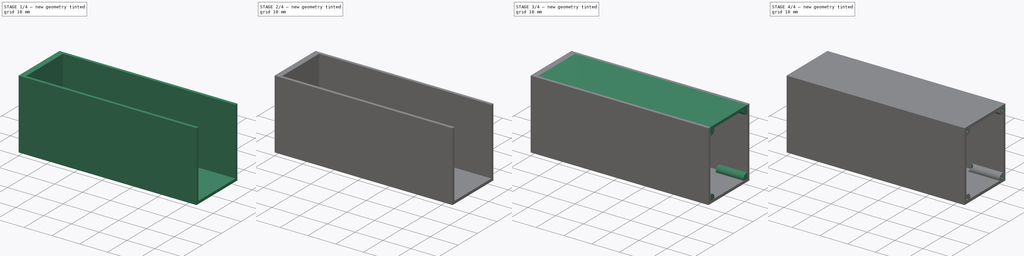
[diagram: build sequence overview — one tinted view per stage of 4, left to right]
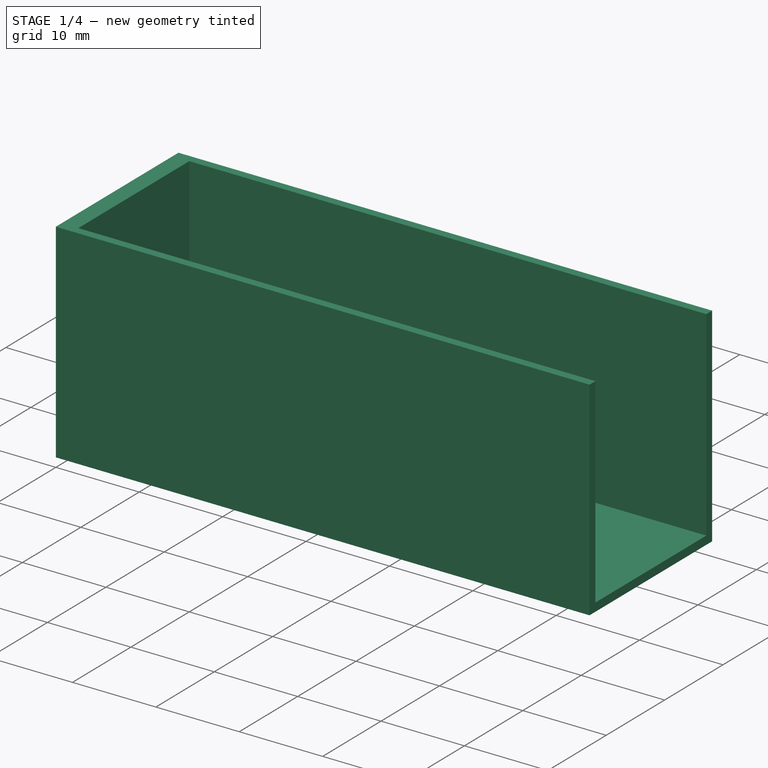
[diagram: stage 1 of 4 — iso view after this stage's code; geometry added in this stage tinted green]
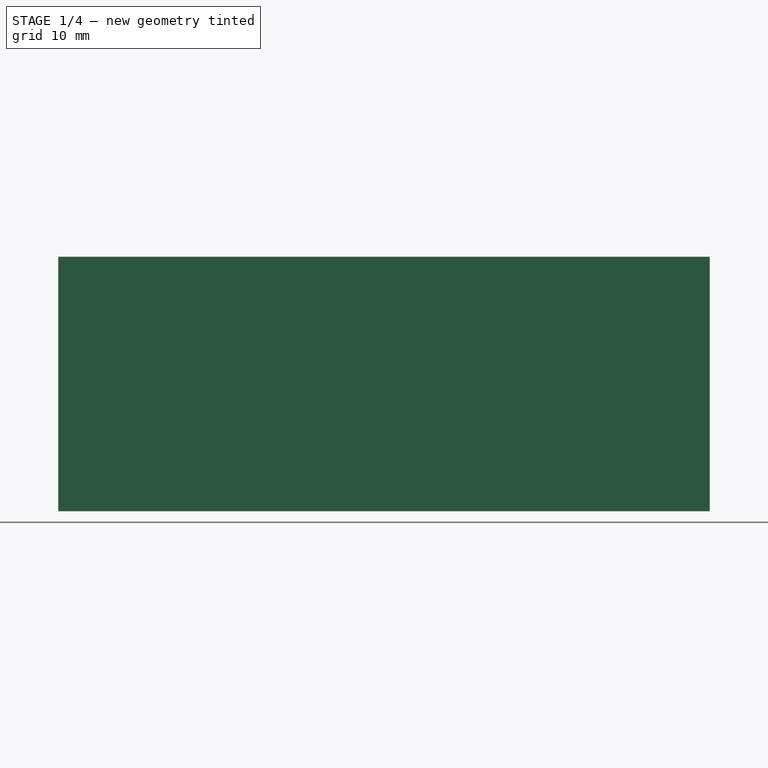
[diagram: stage 1 of 4 — front view after this stage's code; geometry added in this stage tinted green]
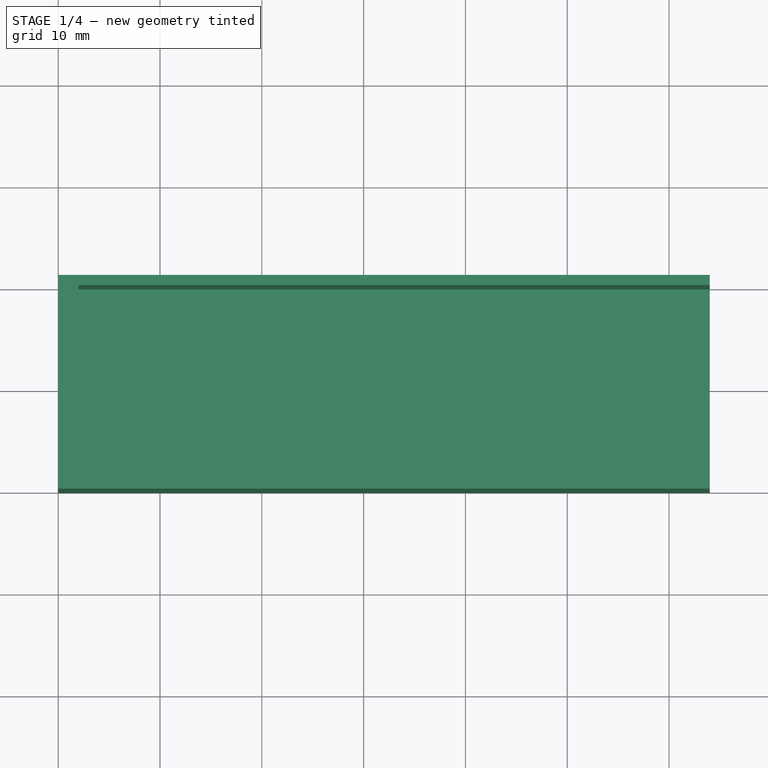
[diagram: stage 1 of 4 — top view after this stage's code; geometry added in this stage tinted green]
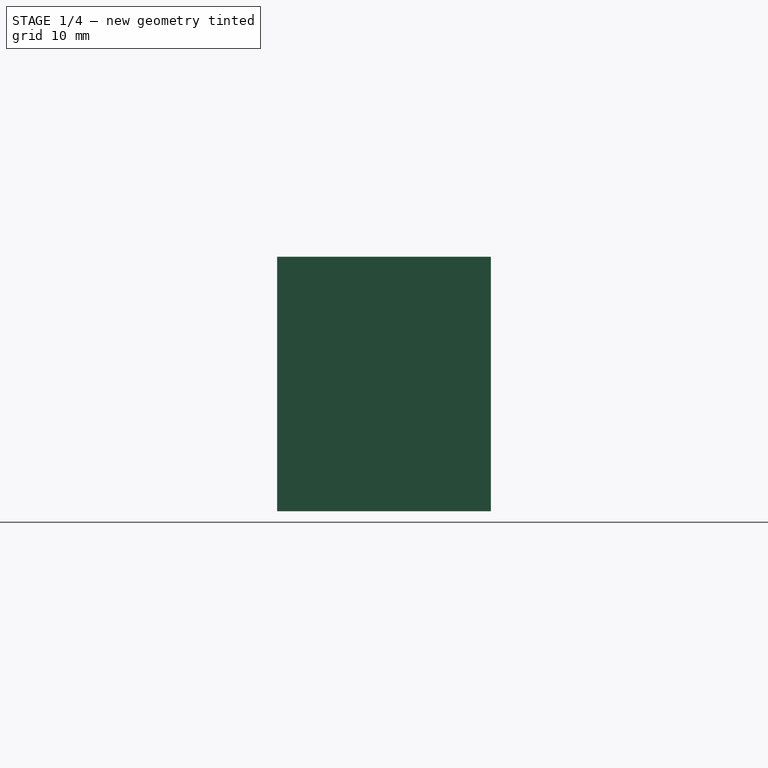
[diagram: stage 1 of 4 — right view after this stage's code; geometry added in this stage tinted green]
FCSTD DOCUMENT  (FreeCAD 0.19R)
Label: base
License: All rights reserved
LicenseURL: http://en.wikipedia.org/wiki/All_rights_reserved
objects: Sketcher::SketchObject×7, PartDesign::Pad×4, PartDesign::Pocket×3, PartDesign::Chamfer×2, PartDesign::Body×1
note: 26 computed .brp shape members not serialized (recipe doc carries the construction recipe); baked Part::Feature solids carry a one-line shape summary decoded from their .brp

FEATURE [Sketcher::SketchObject] Sketch  label="base_pad_sketch"
  FullyConstrained = true
  MapMode = 5
  Support = -> [XY_Plane]
  sketch-geometry (4):
    g0: LineSegment StartX=0 StartY=0 StartZ=0 EndX=64 EndY=0 EndZ=0
    g1: LineSegment StartX=64 StartY=0 StartZ=0 EndX=64 EndY=21 EndZ=0
    g2: LineSegment StartX=64 StartY=21 StartZ=0 EndX=0 EndY=21 EndZ=0
    g3: LineSegment StartX=0 StartY=21 StartZ=0 EndX=0 EndY=0 EndZ=0
  constraints (11):
    c: Coincident(g0,g1)
    c: Coincident(g1,g2)
    c: Coincident(g2,g3)
    c: Coincident(g3,g0)
    c: Horizontal(g0)
    c: Horizontal(g2)
    c: Vertical(g1)
    c: Vertical(g3)
    c: Coincident(g0,g-1)
    c: Distance(g2) = 64
    c: Distance(g1) = 21
FEATURE [PartDesign::Pad] Pad  label="base_pad"
  Direction = (1,1,1)
  Length = 25
  Length2 = 100
  Profile = -> Sketch
  Type = 0
FEATURE [Sketcher::SketchObject] Sketch001  label="base_pocket_sketch"
  FullyConstrained = true
  MapMode = 5
  Placement = pos=(0,0,25) rot=(0,0,1;0rad)
  Support = -> [Pad]
  sketch-geometry (4):
    g0: LineSegment StartX=2 StartY=20 StartZ=0 EndX=64 EndY=20 EndZ=0
    g1: LineSegment StartX=64 StartY=20 StartZ=0 EndX=64 EndY=1 EndZ=0
    g2: LineSegment StartX=64 StartY=1 StartZ=0 EndX=2 EndY=1 EndZ=0
    g3: LineSegment StartX=2 StartY=1 StartZ=0 EndX=2 EndY=20 EndZ=0
  constraints (12):
    c: Coincident(g0,g1)
    c: Coincident(g1,g2)
    c: Coincident(g2,g3)
    c: Coincident(g3,g0)
    c: Horizontal(g0)
    c: Horizontal(g2)
    c: Vertical(g1)
    c: Vertical(g3)
    c: Distance(g0) = 62
    c: Distance(g1) = 19
    c: DistanceX(g-2,g2) = 2
    c: DistanceY(g-1,g2) = 1
FEATURE [PartDesign::Pocket] Pocket  label="base_pocket"
  BaseFeature = -> Pad
  Length = 24
  Length2 = 100
  Profile = -> Sketch001
  Type = 0
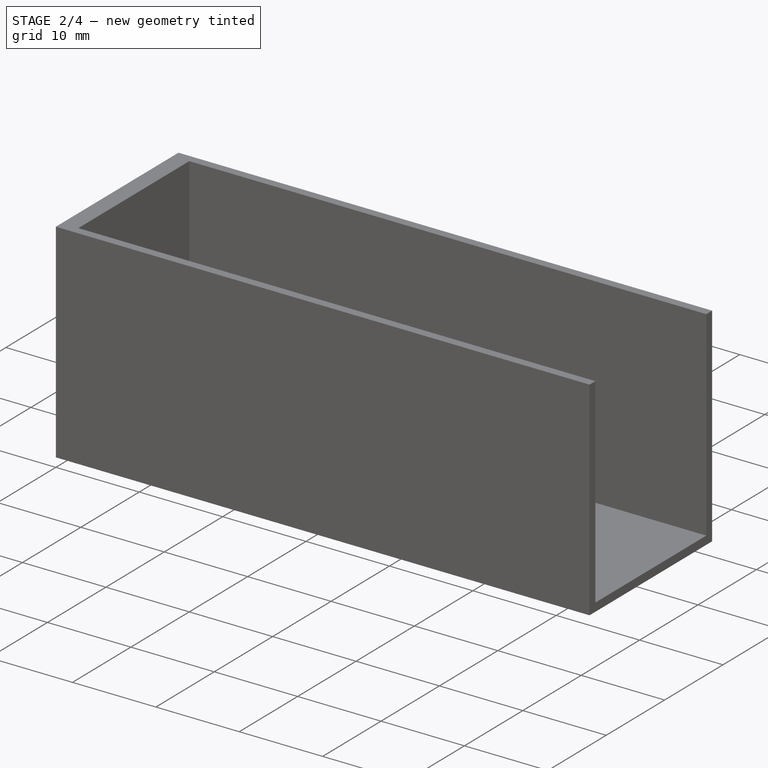
[diagram: stage 2 of 4 — iso view after this stage's code; geometry added in this stage tinted green]
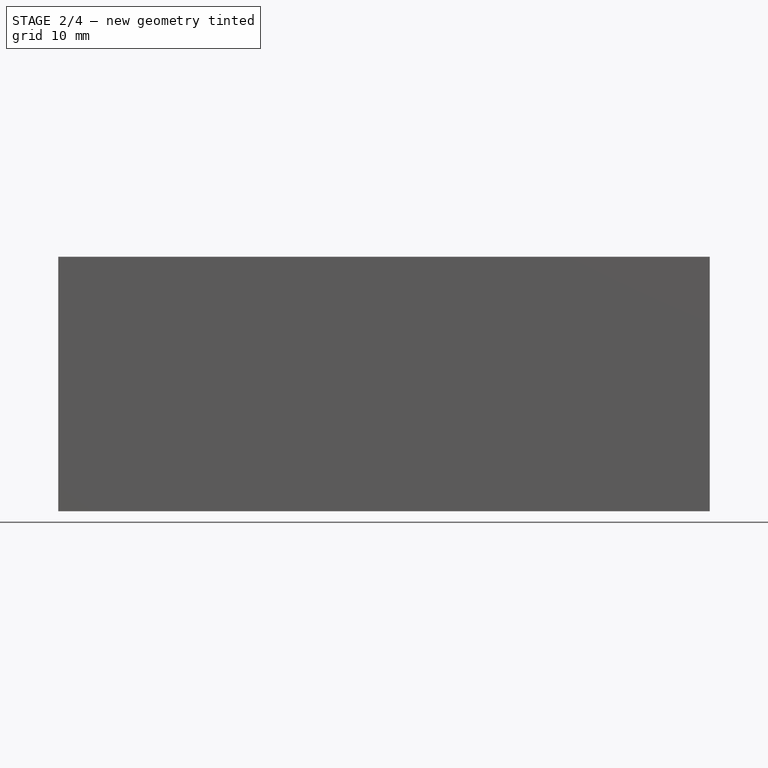
[diagram: stage 2 of 4 — front view after this stage's code; geometry added in this stage tinted green]
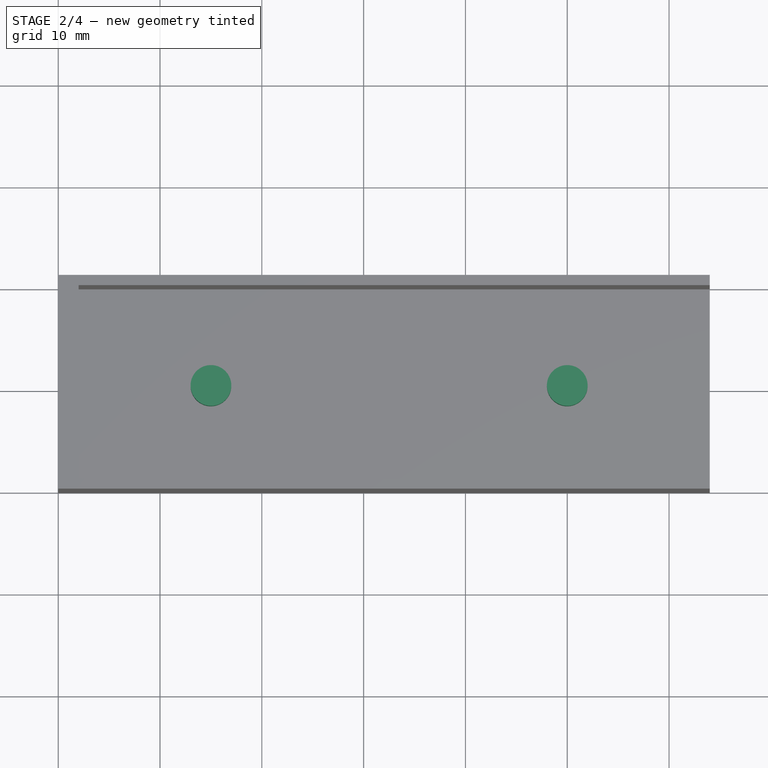
[diagram: stage 2 of 4 — top view after this stage's code; geometry added in this stage tinted green]
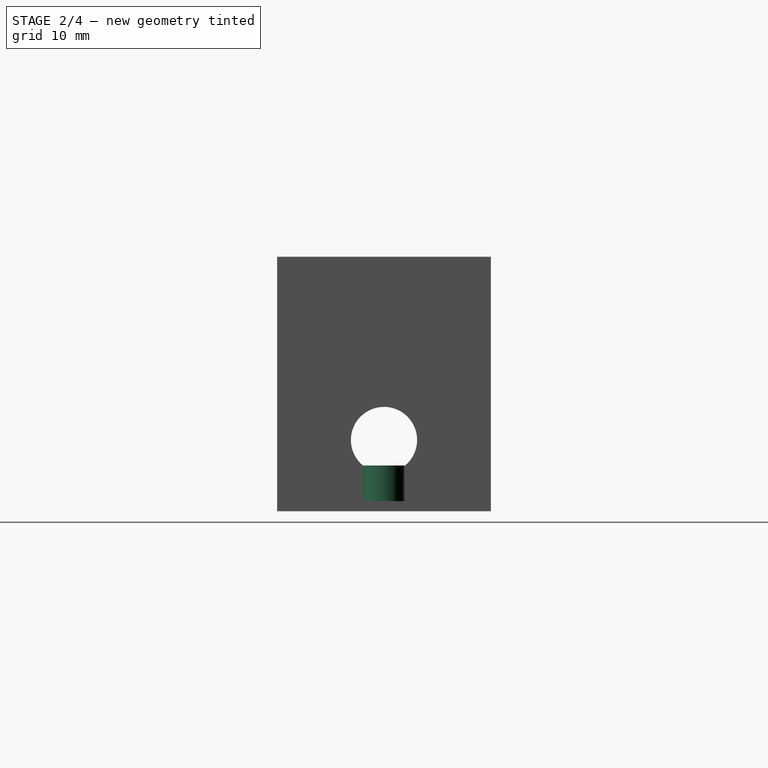
[diagram: stage 2 of 4 — right view after this stage's code; geometry added in this stage tinted green]
FEATURE [Sketcher::SketchObject] Sketch003  label="antenna_socket_pocket_sketch"
  FullyConstrained = true
  MapMode = 5
  Placement = pos=(2,0,0) rot=(0.57735,0.57735,0.57735;2.0944rad)
  Support = -> [Pocket]
  sketch-geometry (1):
    g0: Circle CenterX=10.5 CenterY=7 CenterZ=0 NormalX=0 NormalY=0 NormalZ=1 AngleXU=0 Radius=3.25
  constraints (3):
    c: Radius(g0) = 3.25
    c: DistanceY(g-1,g0) = 7
    c: DistanceX(g-2,g0) = 10.5
FEATURE [PartDesign::Pocket] Pocket001  label="antenna_socket_pocket"
  BaseFeature = -> Pocket
  Length = 5
  Length2 = 100
  Profile = -> Sketch003
  Type = 0
FEATURE [Sketcher::SketchObject] Sketch004  label="board_stands_pad_sketch"
  FullyConstrained = true
  MapMode = 5
  Placement = pos=(0,0,1) rot=(0,0,1;0rad)
  Support = -> [Pocket001]
  sketch-geometry (2):
    g0: Circle CenterX=15 CenterY=10.5 CenterZ=0 NormalX=0 NormalY=0 NormalZ=1 AngleXU=0 Radius=2
    g1: Circle CenterX=50 CenterY=10.5 CenterZ=0 NormalX=0 NormalY=0 NormalZ=1 AngleXU=0 Radius=2
  constraints (6):
    c: Equal(g1,g0)
    c: Radius(g1) = 2
    c: Distance(g0,g1) = 35
    c: DistanceY(g-1,g0) = 10.5
    c: DistanceY(g-1,g1) = 10.5
    c: DistanceX(g-2,g0) = 15
FEATURE [PartDesign::Pad] Pad001  label="board_stands_pad"
  BaseFeature = -> Pocket001
  Direction = (1,1,1)
  Length = 3.5
  Length2 = 100
  Profile = -> Sketch004
  Type = 0
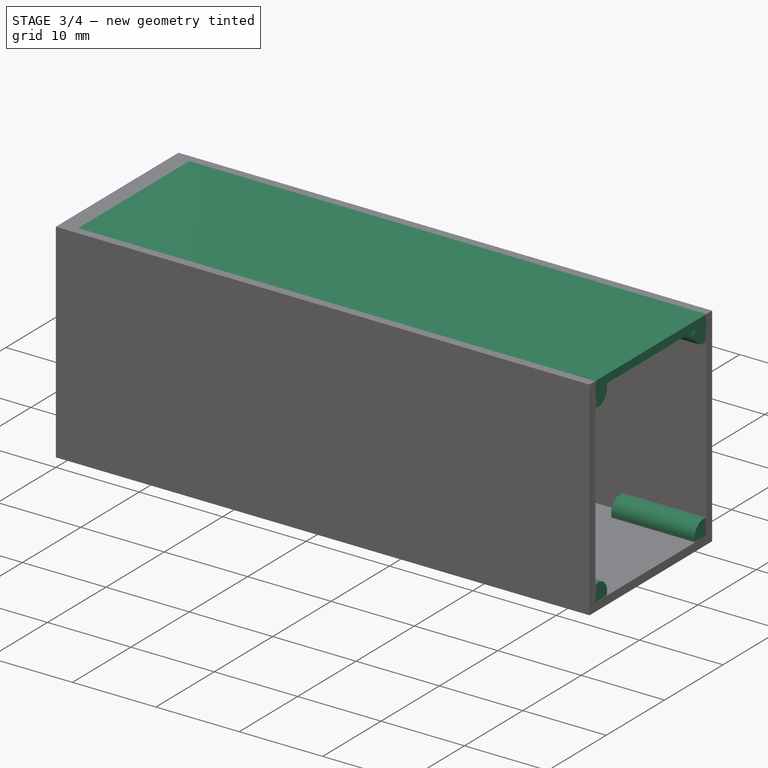
[diagram: stage 3 of 4 — iso view after this stage's code; geometry added in this stage tinted green]
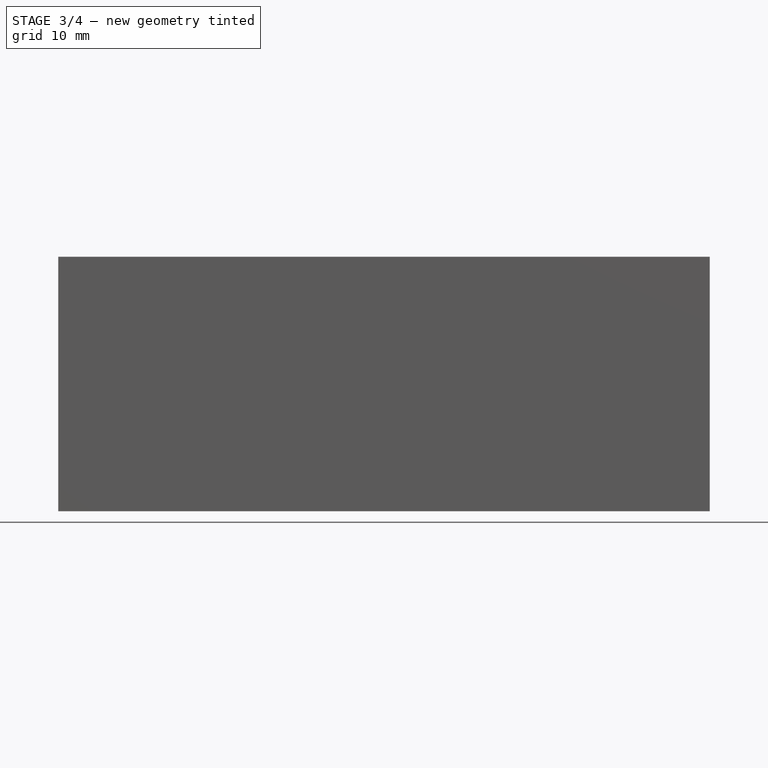
[diagram: stage 3 of 4 — front view after this stage's code; geometry added in this stage tinted green]
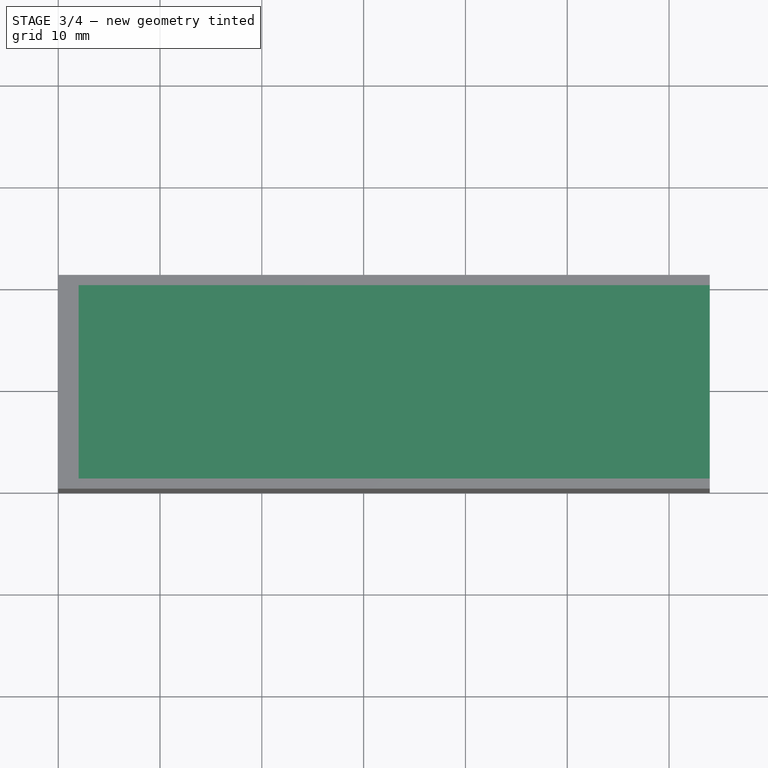
[diagram: stage 3 of 4 — top view after this stage's code; geometry added in this stage tinted green]
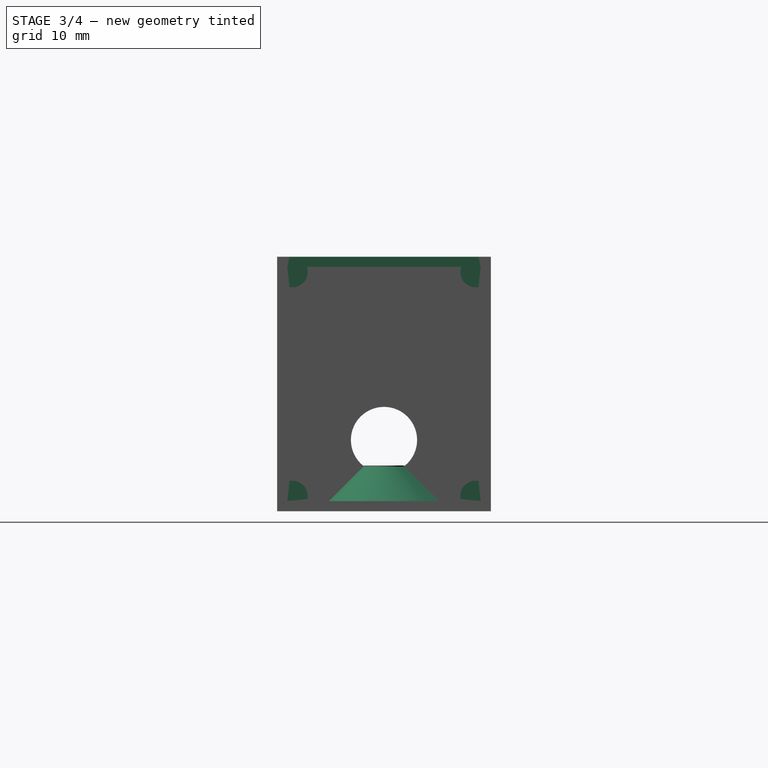
[diagram: stage 3 of 4 — right view after this stage's code; geometry added in this stage tinted green]
FEATURE [Sketcher::SketchObject] Sketch005  label="cover_rails_pocket_sketch"
  FullyConstrained = true
  MapMode = 5
  Placement = pos=(64,0,0) rot=(0.57735,0.57735,0.57735;2.0944rad)
  Support = -> [Pad001]
  sketch-geometry (4):
    g0: LineSegment StartX=20.5 StartY=24 StartZ=0 EndX=0.5 EndY=24 EndZ=0
    g1: LineSegment StartX=0.5 StartY=24 StartZ=0 EndX=0.5 EndY=25 EndZ=0
    g2: LineSegment StartX=0.5 StartY=25 StartZ=0 EndX=20.5 EndY=25 EndZ=0
    g3: LineSegment StartX=20.5 StartY=25 StartZ=0 EndX=20.5 EndY=24 EndZ=0
  constraints (12):
    c: Coincident(g0,g1)
    c: Coincident(g1,g2)
    c: Coincident(g2,g3)
    c: Coincident(g3,g0)
    c: Horizontal(g0)
    c: Horizontal(g2)
    c: Vertical(g1)
    c: Vertical(g3)
    c: DistanceY(g-1,g2) = 25
    c: DistanceX(g-2,g1) = 0.5
    c: Distance(g1) = 1
    c: Distance(g2) = 20
FEATURE [PartDesign::Pad] Pad002  label="cover_rails_pad"
  BaseFeature = -> Pad001
  Direction = (1,1,1)
  Length = 63
  Length2 = 100
  Profile = -> Sketch005
  Reversed = true
  Type = 0
FEATURE [PartDesign::Chamfer] Chamfer  label="board_stands_chamfer"
  Angle = 45
  Base = -> Pad002 [Edge35,Edge34]
  BaseFeature = -> Pad002
  ChamferType = 0
  FlipDirection = false
  Size = 3.4
  Size2 = 1
  SupportTransform = false
FEATURE [Sketcher::SketchObject] Sketch006  label="screw_pads_sketch"
  FullyConstrained = true
  MapMode = 5
  Placement = pos=(64,0,0) rot=(0.57735,0.57735,0.57735;2.0944rad)
  Support = -> [Chamfer]
  sketch-geometry (4):
    g0: Circle CenterX=1.5 CenterY=23.5 CenterZ=0 NormalX=0 NormalY=0 NormalZ=1 AngleXU=0 Radius=1.5
    g1: Circle CenterX=19.5 CenterY=23.5 CenterZ=0 NormalX=0 NormalY=0 NormalZ=1 AngleXU=0 Radius=1.5
    g2: Circle CenterX=1.5 CenterY=1.5 CenterZ=0 NormalX=0 NormalY=0 NormalZ=1 AngleXU=0 Radius=1.5
    g3: Circle CenterX=19.5 CenterY=1.5 CenterZ=0 NormalX=0 NormalY=0 NormalZ=1 AngleXU=0 Radius=1.5
  constraints (12):
    c: Equal(g0,g1)
    c: Equal(g1,g2)
    c: Equal(g2,g3)
    c: Radius(g0) = 1.5
    c: Distance(g0,g1) = 18
    c: Distance(g2,g3) = 18
    c: Distance(g1,g3) = 22
    c: Distance(g0,g2) = 22
    c: DistanceX(g-2,g2) = 1.5
    c: DistanceY(g-1,g2) = 1.5
    c: DistanceY(g-1,g3) = 1.5
    c: DistanceX(g-2,g0) = 1.5
FEATURE [PartDesign::Pad] Pad003  label="screw_pads"
  BaseFeature = -> Chamfer
  Direction = (1,1,1)
  Length = 10
  Length2 = 100
  Profile = -> Sketch006
  Reversed = true
  Type = 0
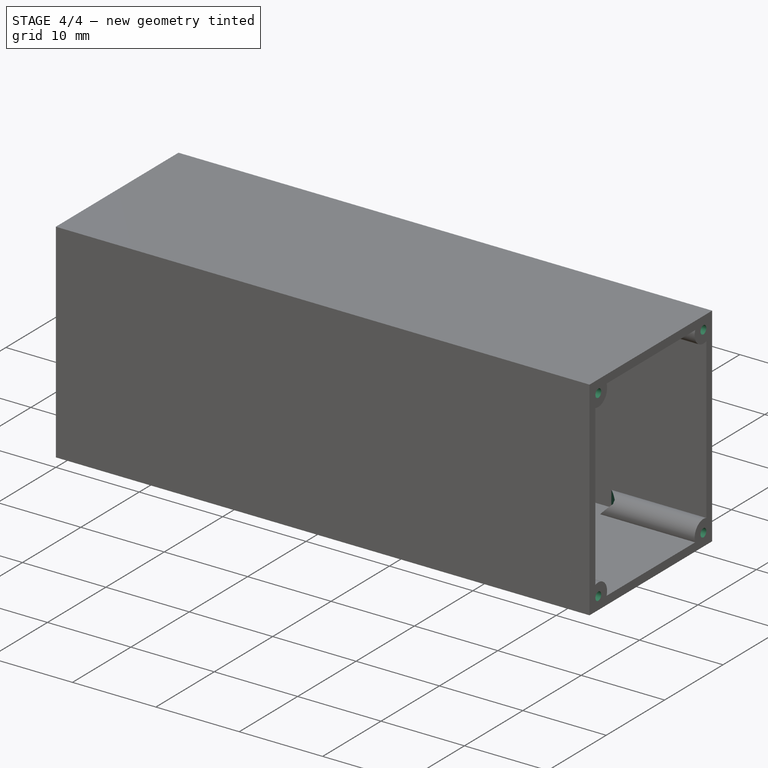
[diagram: stage 4 of 4 — iso view after this stage's code; geometry added in this stage tinted green]
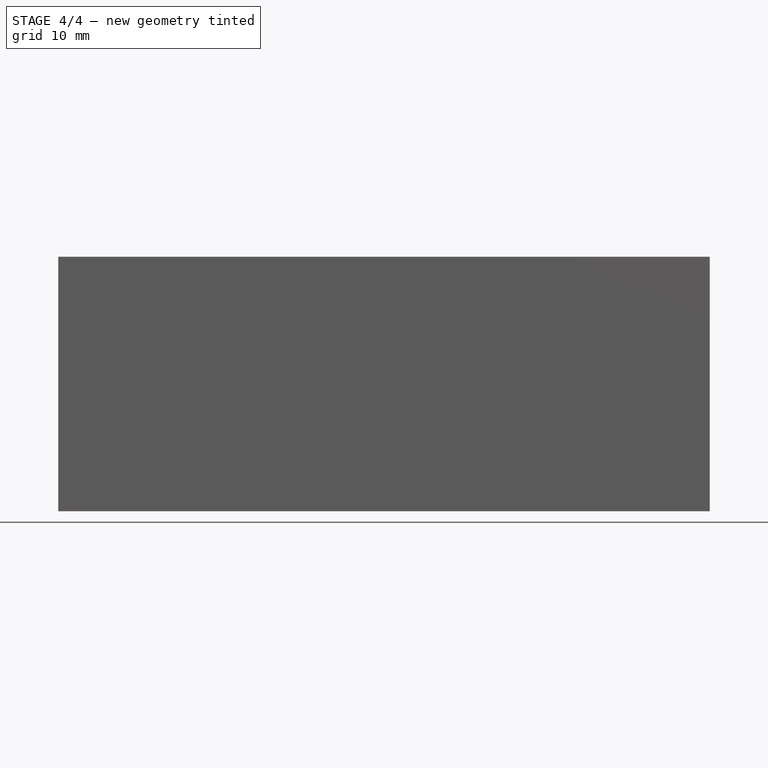
[diagram: stage 4 of 4 — front view after this stage's code; geometry added in this stage tinted green]
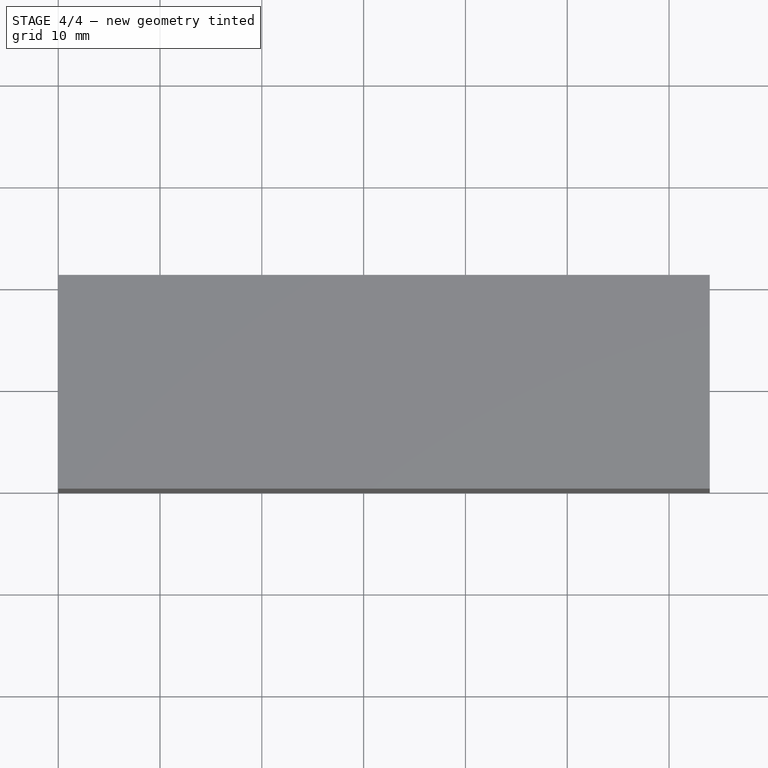
[diagram: stage 4 of 4 — top view after this stage's code; geometry added in this stage tinted green]
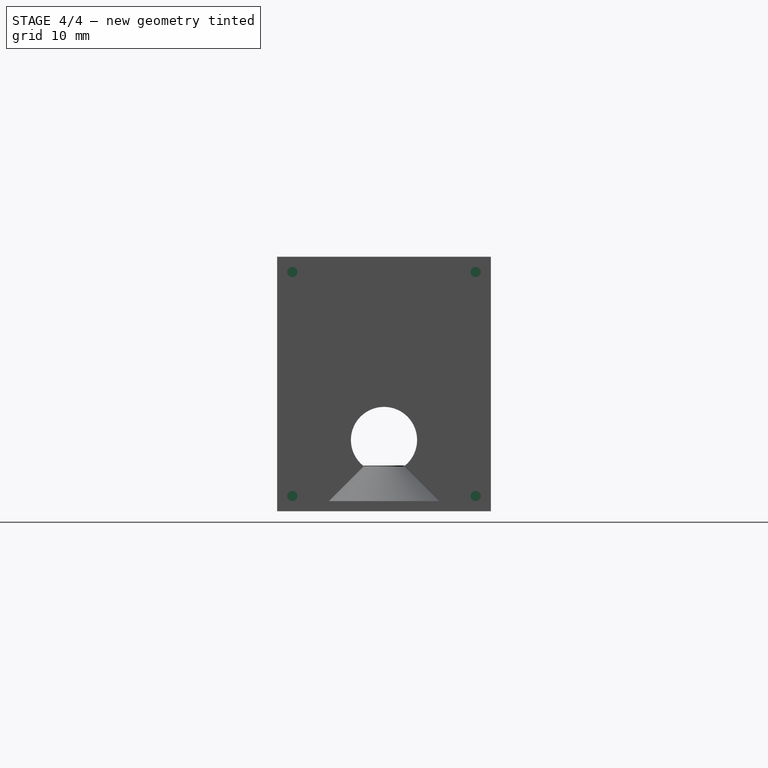
[diagram: stage 4 of 4 — right view after this stage's code; geometry added in this stage tinted green]
FEATURE [Sketcher::SketchObject] Sketch007  label="screw_pockets_sketch"
  FullyConstrained = true
  MapMode = 5
  Placement = pos=(64,0,0) rot=(0.57735,0.57735,0.57735;2.0944rad)
  sketch-geometry (4):
    g0: Circle CenterX=1.5 CenterY=23.5 CenterZ=0 NormalX=0 NormalY=0 NormalZ=1 AngleXU=0 Radius=0.5
    g1: Circle CenterX=19.5 CenterY=23.5 CenterZ=0 NormalX=0 NormalY=0 NormalZ=1 AngleXU=0 Radius=0.5
    g2: Circle CenterX=1.5 CenterY=1.5 CenterZ=0 NormalX=0 NormalY=0 NormalZ=1 AngleXU=0 Radius=0.5
    g3: Circle CenterX=19.5 CenterY=1.5 CenterZ=0 NormalX=0 NormalY=0 NormalZ=1 AngleXU=0 Radius=0.5
  constraints (12):
    c: Equal(g2,g3)
    c: Equal(g3,g1)
    c: Equal(g1,g0)
    c: Radius(g1) = 0.5
    c: Distance(g0,g1) = 18
    c: Distance(g2,g3) = 18
    c: Distance(g1,g3) = 22
    c: Distance(g0,g2) = 22
    c: DistanceX(g-2,g2) = 1.5
    c: DistanceY(g-1,g2) = 1.5
    c: DistanceX(g-2,g0) = 1.5
    c: DistanceY(g-1,g3) = 1.5
FEATURE [PartDesign::Pocket] Pocket002  label="screw_pockets"
  BaseFeature = -> Pad003
  Length = 8
  Length2 = 100
  Profile = -> Sketch007
  Type = 0
FEATURE [PartDesign::Chamfer] Chamfer001  label="screw_pad_chamfer"
  Angle = 45
  Base = -> Pocket002 [Edge3,Edge15,Edge31,Edge7,Edge19,Edge42,Edge43,Edge32]
  BaseFeature = -> Pocket002
  ChamferType = 0
  FlipDirection = false
  Size = 1.4
  Size2 = 1
  SupportTransform = false
FEATURE [PartDesign::Body] Body  label="case_base"
  Group = -> [Sketch,Pad,Sketch001,Pocket,Sketch003,Pocket001,Sketch004,Pad001,Sketch005,Pad002,Chamfer,Sketch006,Pad003,Sketch007,Pocket002,Chamfer001]
  Origin = -> Origin
  Tip = -> Chamfer001
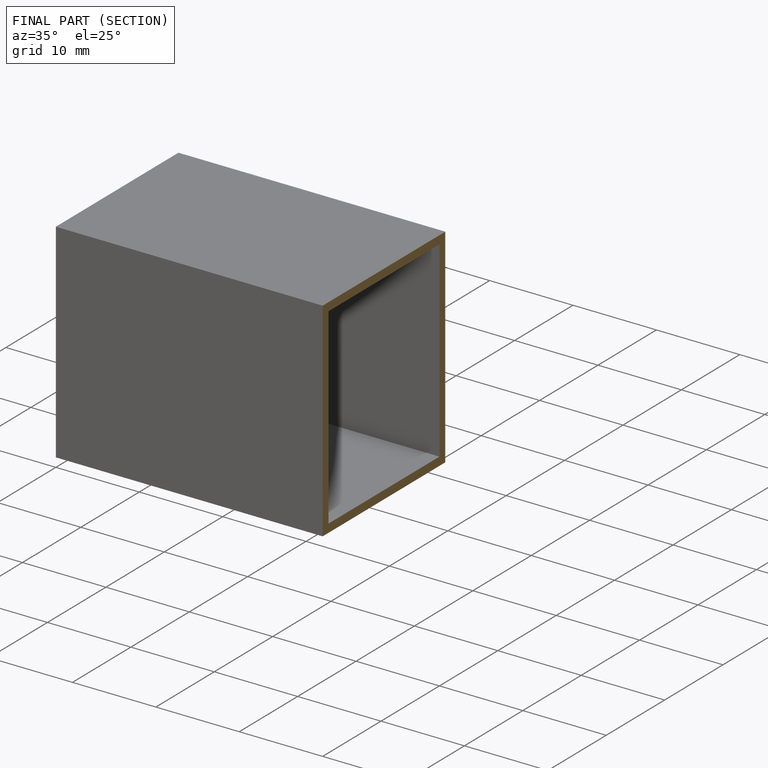
[diagram: finished part — half-section view (interior)]
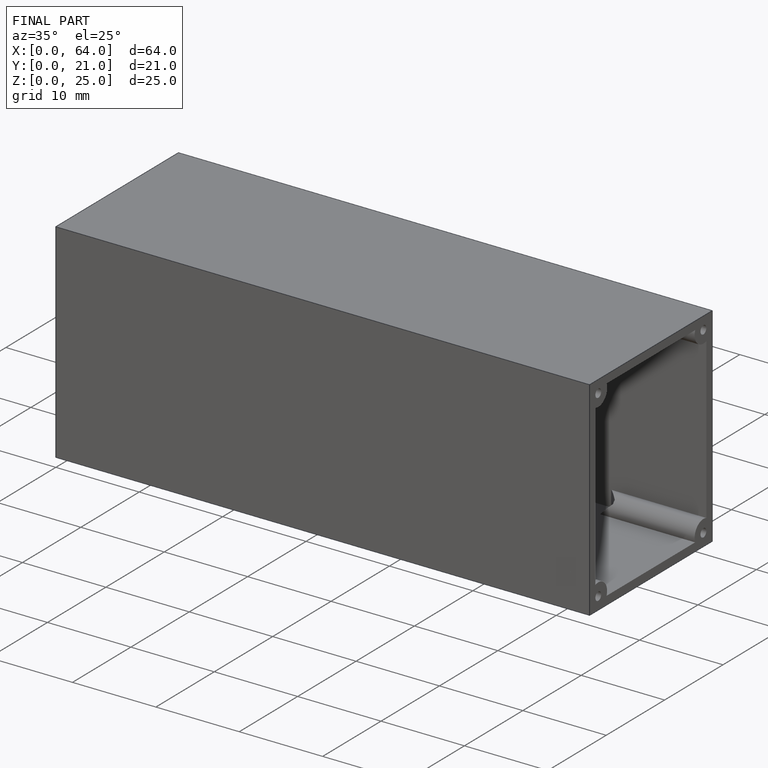
[diagram: finished part — iso view with bounding-box wireframe]
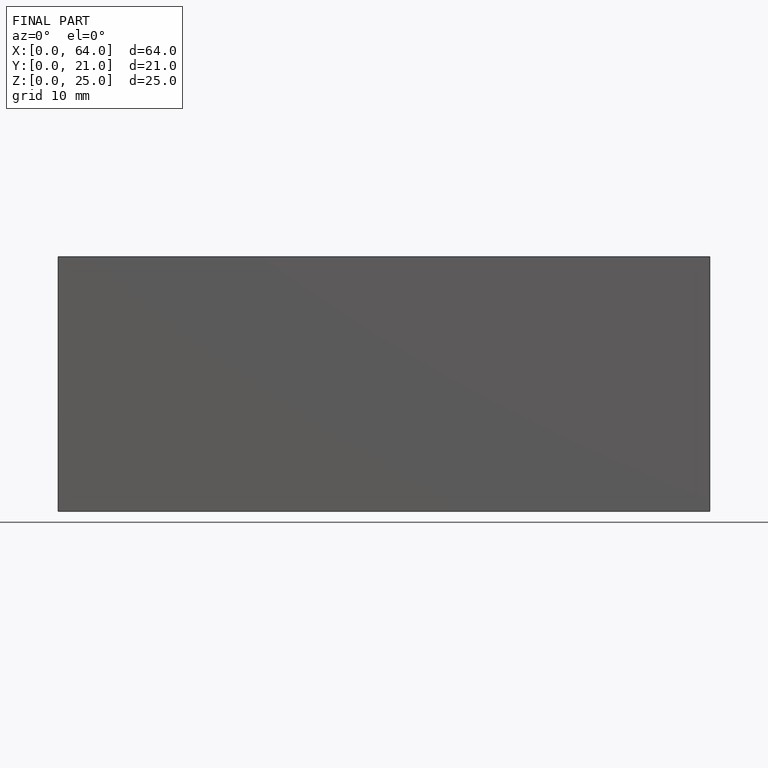
[diagram: finished part — front view with bounding-box wireframe]
